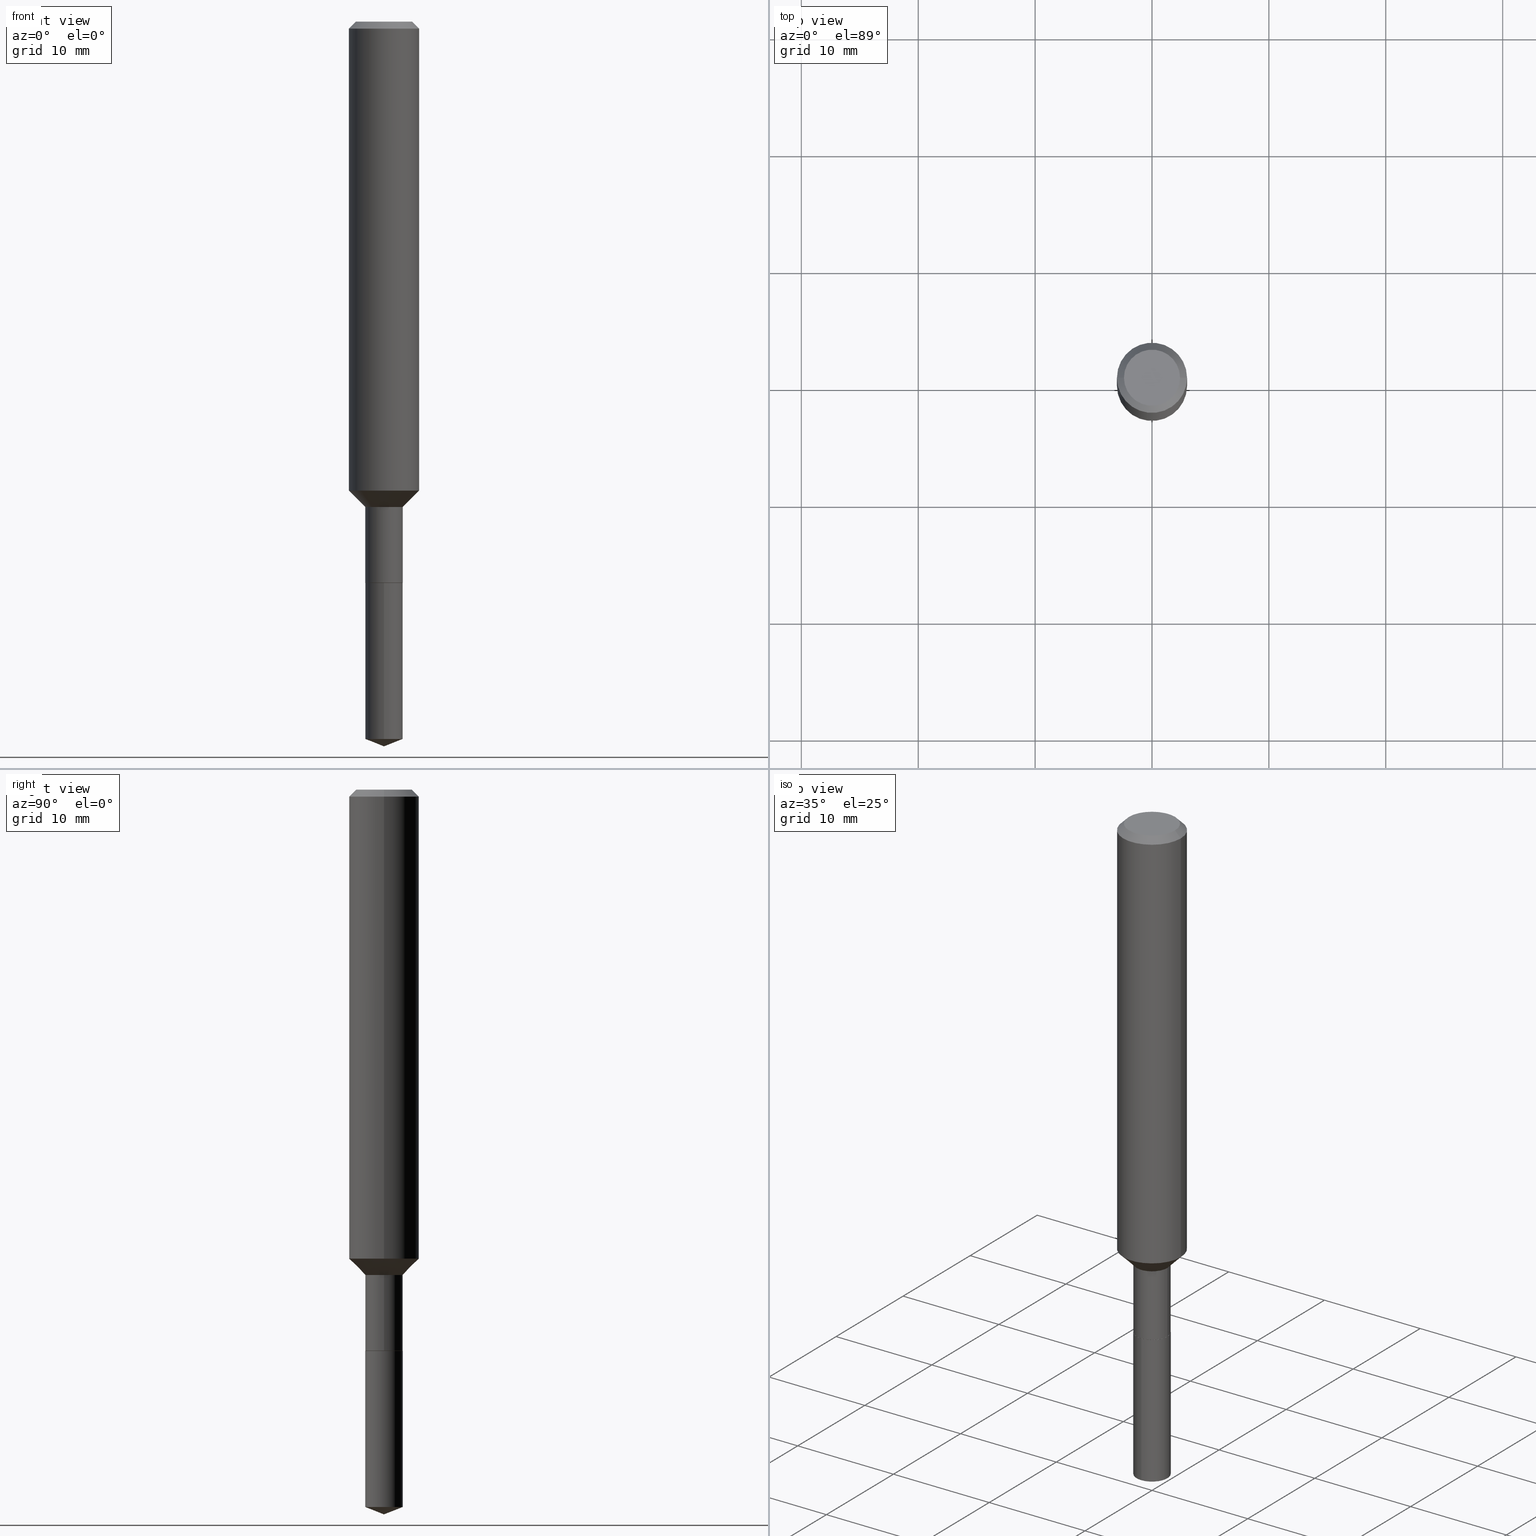
[diagram: canonical four-view strip — front | top / right | iso, engineering-drawing reading convention]
A machine part, canonical four-view strip (front | top / right | iso — engineering-drawing reading convention). The complete STEP part file that produces these views, byte-faithful:
ISO-10303-21;
HEADER;
FILE_DESCRIPTION (( 'STEP AP203' ),
    '1' );
FILE_NAME ('66402.STEP',
    '2024-04-24T22:11:22',
    ( '' ),
    ( '' ),
    'SwSTEP 2.0',
    'SolidWorks 2023',
    '' );
FILE_SCHEMA (( 'CONFIG_CONTROL_DESIGN' ));
ENDSEC;

DATA;
#1 = PRODUCT_DEFINITION_SHAPE ( 'NONE', 'NONE',  #327 ) ;
#2 = DATE_AND_TIME ( #192, #443 ) ;
#3 = PLANE ( 'NONE',  #72 ) ;
#4 = AXIS2_PLACEMENT_3D ( 'NONE', #254, #480, #265 ) ;
#5 = ORIENTED_EDGE ( 'NONE', *, *, #225, .F. ) ;
#6 = ORIENTED_EDGE ( 'NONE', *, *, #255, .T. ) ;
#7 = COORDINATED_UNIVERSAL_TIME_OFFSET ( 5, 0, .BEHIND. ) ;
#8 = DIRECTION ( 'NONE',  ( -2.445468806185136597E-29, 3.491481338843145583E-15, 1.000000000000000000 ) ) ;
#9 = CLOSED_SHELL ( 'NONE', ( #264, #389, #392, #338, #228 ) ) ;
#10 = AXIS2_PLACEMENT_3D ( 'NONE', #290, #63, #441 ) ;
#11 = CARTESIAN_POINT ( 'NONE',  ( 4.476419235289221862E-16, 0.06299999999999340849, -1.889700000000000379 ) ) ;
#12 = ORIENTED_EDGE ( 'NONE', *, *, #331, .F. ) ;
#13 = EDGE_CURVE ( 'NONE', #209, #277, #267, .T. ) ;
#14 = FACE_OUTER_BOUND ( 'NONE', #350, .T. ) ;
#15 = DIRECTION ( 'NONE',  ( -6.982962677686265922E-15, -1.000000000000000000, 4.336266656609941617E-15 ) ) ;
#16 = EDGE_CURVE ( 'NONE', #150, #40, #137, .T. ) ;
#17 = FACE_OUTER_BOUND ( 'NONE', #345, .T. ) ;
#18 = AXIS2_PLACEMENT_3D ( 'NONE', #46, #8, #271 ) ;
#19 = EDGE_LOOP ( 'NONE', ( #67, #155, #79, #371 ) ) ;
#20 = EDGE_CURVE ( 'NONE', #466, #374, #425, .T. ) ;
#21 =( NAMED_UNIT ( * ) PLANE_ANGLE_UNIT ( ) SI_UNIT ( $, .RADIAN. ) );
#22 =( NAMED_UNIT ( * ) SI_UNIT ( $, .STERADIAN. ) SOLID_ANGLE_UNIT ( ) );
#23 = CARTESIAN_POINT ( 'NONE',  ( 4.716267017698007905E-46, -6.733579360998555036E-32, -1.928573779297252010E-17 ) ) ;
#24 = ORIENTED_EDGE ( 'NONE', *, *, #481, .F. ) ;
#25 = CARTESIAN_POINT ( 'NONE',  ( -0.06250000000000000000, -6.153763076161830662E-15, -1.889700000000000157 ) ) ;
#26 = ADVANCED_FACE ( 'NONE', ( #178 ), #69, .F. ) ;
#27 = CIRCLE ( 'NONE', #18, 0.06250000000000000000 ) ;
#28 = LINE ( 'NONE', #399, #376 ) ;
#29 = ORGANIZATION ( 'UNSPECIFIED', 'UNSPECIFIED', '' ) ;
#30 = DIRECTION ( 'NONE',  ( 1.000000000000000000, -6.982962677686267499E-15, 4.875432709231658792E-29 ) ) ;
#31 = DIRECTION ( 'NONE',  ( -2.445468806185136597E-29, 3.491481338843145583E-15, 1.000000000000000000 ) ) ;
#32 = LINE ( 'NONE', #172, #233 ) ;
#33 = PERSON_AND_ORGANIZATION_ROLE ( 'design_supplier' ) ;
#34 = DIRECTION ( 'NONE',  ( -2.445468806185136597E-29, 3.491481338843145583E-15, 1.000000000000000000 ) ) ;
#35 = AXIS2_PLACEMENT_3D ( 'NONE', #451, #300, #380 ) ;
#36 = VECTOR ( 'NONE', #388, 39.37007874015748143 ) ;
#37 = AXIS2_PLACEMENT_3D ( 'NONE', #282, #432, #171 ) ;
#38 = CARTESIAN_POINT ( 'NONE',  ( 4.621202403048053204E-29, -6.597852286011892490E-15, -1.889700000000000157 ) ) ;
#39 = PERSON_AND_ORGANIZATION ( #431, #29 ) ;
#40 = VERTEX_POINT ( 'NONE', #406 ) ;
#41 = ORIENTED_EDGE ( 'NONE', *, *, #362, .F. ) ;
#42 = LOCAL_TIME ( 18, 11, 22.00000000000000000, #77 ) ;
#43 = PERSON_AND_ORGANIZATION_ROLE ( 'creator' ) ;
#44 = DIRECTION ( 'NONE',  ( -6.982962677686265922E-15, -1.000000000000000000, 4.336266656609941617E-15 ) ) ;
#45 = ORIENTED_EDGE ( 'NONE', *, *, #324, .F. ) ;
#46 = CARTESIAN_POINT ( 'NONE',  ( 4.621202403048053204E-29, -6.597852286011892490E-15, -1.889700000000000157 ) ) ;
#47 = VERTEX_POINT ( 'NONE', #262 ) ;
#48 = FACE_OUTER_BOUND ( 'NONE', #117, .T. ) ;
#49 = AXIS2_PLACEMENT_3D ( 'NONE', #222, #191, #96 ) ;
#50 = CC_DESIGN_PERSON_AND_ORGANIZATION_ASSIGNMENT ( #98, #62, ( #238 ) ) ;
#51 = VECTOR ( 'NONE', #204, 39.37007874015748143 ) ;
#52 = CC_DESIGN_SECURITY_CLASSIFICATION ( #88, ( #462 ) ) ;
#53 = DIRECTION ( 'NONE',  ( -6.982962677686268288E-15, -1.000000000000000000, 3.498627837350033805E-15 ) ) ;
#54 = ORIENTED_EDGE ( 'NONE', *, *, #116, .T. ) ;
#55 = APPLICATION_CONTEXT ( 'configuration controlled 3d designs of mechanical parts and assemblies' ) ;
#56 = LINE ( 'NONE', #463, #36 ) ;
#57 = DIRECTION ( 'NONE',  ( -2.445468806185136597E-29, 3.491481338843145583E-15, 1.000000000000000000 ) ) ;
#58 = ORIENTED_EDGE ( 'NONE', *, *, #203, .F. ) ;
#59 = DIRECTION ( 'NONE',  ( -2.434988852863249163E-29, 3.506489228481988303E-15, 1.000000000000000000 ) ) ;
#60 = DIRECTION ( 'NONE',  ( 1.000000000000000000, -6.982962677686266711E-15, 0.000000000000000000 ) ) ;
#61 = ORIENTED_EDGE ( 'NONE', *, *, #116, .F. ) ;
#62 = PERSON_AND_ORGANIZATION_ROLE ( 'design_owner' ) ;
#63 = DIRECTION ( 'NONE',  ( -2.445468806185136597E-29, 3.491481338843145583E-15, 1.000000000000000000 ) ) ;
#64 = CONICAL_SURFACE ( 'NONE', #334, 99.94676754583912270, 1.195550537616116626 ) ;
#65 = DIRECTION ( 'NONE',  ( -2.438088387897960049E-29, 3.491481338843145188E-15, 1.000000000000000000 ) ) ;
#66 = AXIS2_PLACEMENT_3D ( 'NONE', #263, #479, #106 ) ;
#67 = ORIENTED_EDGE ( 'NONE', *, *, #188, .F. ) ;
#68 = EDGE_CURVE ( 'NONE', #131, #269, #107, .T. ) ;
#69 = PLANE ( 'NONE',  #384 ) ;
#70 = DIRECTION ( 'NONE',  ( 6.611014441532059489E-15, 0.9304175679820261280, 0.3665012267242931943 ) ) ;
#71 = ADVANCED_FACE ( 'NONE', ( #221 ), #140, .T. ) ;
#72 = AXIS2_PLACEMENT_3D ( 'NONE', #38, #455, #417 ) ;
#73 = CC_DESIGN_APPROVAL ( #273, ( #327 ) ) ;
#74 = COORDINATED_UNIVERSAL_TIME_OFFSET ( 5, 0, .BEHIND. ) ;
#75 = VERTEX_POINT ( 'NONE', #226 ) ;
#76 = COORDINATED_UNIVERSAL_TIME_OFFSET ( 5, 0, .BEHIND. ) ;
#77 = COORDINATED_UNIVERSAL_TIME_OFFSET ( 5, 0, .BEHIND. ) ;
#78 = CYLINDRICAL_SURFACE ( 'NONE', #258, 0.06300000000000000044 ) ;
#79 = ORIENTED_EDGE ( 'NONE', *, *, #112, .T. ) ;
#80 = AXIS2_PLACEMENT_3D ( 'NONE', #245, #59, #91 ) ;
#81 = ORIENTED_EDGE ( 'NONE', *, *, #430, .F. ) ;
#82 = EDGE_LOOP ( 'NONE', ( #237, #302 ) ) ;
#83 = DIRECTION ( 'NONE',  ( -1.000000000000000000, 6.982962677686266711E-15, 0.000000000000000000 ) ) ;
#84 = ORIENTED_EDGE ( 'NONE', *, *, #481, .T. ) ;
#85 = DIRECTION ( 'NONE',  ( 1.000000000000000000, -6.982962677686262766E-15, 0.000000000000000000 ) ) ;
#86 = EDGE_LOOP ( 'NONE', ( #337, #5 ) ) ;
#87 = VECTOR ( 'NONE', #99, 39.37007874015748854 ) ;
#88 = SECURITY_CLASSIFICATION ( '', '', #414 ) ;
#89 = CARTESIAN_POINT ( 'NONE',  ( 5.776197320209327532E-31, -8.246878922347559293E-17, -0.02362000000000014088 ) ) ;
#90 = EDGE_CURVE ( 'NONE', #438, #40, #329, .T. ) ;
#91 = DIRECTION ( 'NONE',  ( -6.982962677686265922E-15, -1.000000000000000000, 4.336266656609941617E-15 ) ) ;
#92 = CARTESIAN_POINT ( 'NONE',  ( -8.990233460988559297E-28, 1.295201278780987653E-13, 36.92917874015748225 ) ) ;
#93 = CIRCLE ( 'NONE', #434, 0.09447999999999998066 ) ;
#94 = LOCAL_TIME ( 18, 11, 22.00000000000000000, #74 ) ;
#95 = CARTESIAN_POINT ( 'NONE',  ( 5.776197320209327532E-31, -8.246878922347559293E-17, -0.02362000000000014088 ) ) ;
#96 = DIRECTION ( 'NONE',  ( -6.982962677686265922E-15, -1.000000000000000000, 4.336266656609941617E-15 ) ) ;
#97 = ORIENTED_EDGE ( 'NONE', *, *, #112, .F. ) ;
#98 = PERSON_AND_ORGANIZATION ( #431, #29 ) ;
#99 = DIRECTION ( 'NONE',  ( -6.497071151882111948E-15, -0.9304175679820234635, 0.3665012267242997446 ) ) ;
#100 = CC_DESIGN_PERSON_AND_ORGANIZATION_ASSIGNMENT ( #295, #407, ( #462 ) ) ;
#101 = CARTESIAN_POINT ( 'NONE',  ( 5.983519541380308679E-29, -8.502268739700643296E-15, -2.440900000000000070 ) ) ;
#102 = EDGE_LOOP ( 'NONE', ( #41, #213, #84, #113 ) ) ;
#103 = CARTESIAN_POINT ( 'NONE',  ( 3.862617979369423335E-29, -5.514794774702748288E-15, -1.579499999999999904 ) ) ;
#104 = CARTESIAN_POINT ( 'NONE',  ( 5.943564290953905470E-29, -8.558989557801686786E-15, -2.440900000000000070 ) ) ;
#105 = LOCAL_TIME ( 18, 11, 22.00000000000000000, #7 ) ;
#106 = DIRECTION ( 'NONE',  ( 1.000000000000000000, -6.982962677686266711E-15, 0.000000000000000000 ) ) ;
#107 = LINE ( 'NONE', #475, #87 ) ;
#108 = DATE_TIME_ROLE ( 'creation_date' ) ;
#109 = CALENDAR_DATE ( 2024, 24, 4 ) ;
#110 = AXIS2_PLACEMENT_3D ( 'NONE', #401, #219, #216 ) ;
#111 = CONICAL_SURFACE ( 'NONE', #386, 0.06299999999999997269, 0.7853981633974485010 ) ;
#112 = EDGE_CURVE ( 'NONE', #269, #209, #28, .T. ) ;
#113 = ORIENTED_EDGE ( 'NONE', *, *, #121, .F. ) ;
#114 = PERSON_AND_ORGANIZATION ( #431, #29 ) ;
#115 = EDGE_LOOP ( 'NONE', ( #235, #311, #168, #24 ) ) ;
#116 = EDGE_CURVE ( 'NONE', #131, #423, #404, .T. ) ;
#117 = EDGE_LOOP ( 'NONE', ( #45, #244, #379, #347 ) ) ;
#118 = DATE_TIME_ROLE ( 'classification_date' ) ;
#119 = DIRECTION ( 'NONE',  ( -2.434988852863249163E-29, 3.506489228481988303E-15, 1.000000000000000000 ) ) ;
#120 = VECTOR ( 'NONE', #325, 39.37007874015748143 ) ;
#121 = EDGE_CURVE ( 'NONE', #374, #466, #442, .T. ) ;
#122 = DIRECTION ( 'NONE',  ( -2.434988852863249163E-29, 3.506489228481988303E-15, 1.000000000000000000 ) ) ;
#123 = ORIENTED_EDGE ( 'NONE', *, *, #179, .T. ) ;
#124 = DIRECTION ( 'NONE',  ( 0.7071067811865459074, -7.319954787623249734E-15, -0.7071067811865491270 ) ) ;
#125 = ORIENTED_EDGE ( 'NONE', *, *, #309, .T. ) ;
#126 = FACE_OUTER_BOUND ( 'NONE', #217, .T. ) ;
#127 = ORIENTED_EDGE ( 'NONE', *, *, #444, .T. ) ;
#128 = EDGE_CURVE ( 'NONE', #134, #75, #306, .T. ) ;
#129 = CIRCLE ( 'NONE', #307, 0.06299999999999998657 ) ;
#130 = DIRECTION ( 'NONE',  ( 2.438088387897960049E-29, -3.491481338843145188E-15, -1.000000000000000000 ) ) ;
#131 = VERTEX_POINT ( 'NONE', #104 ) ;
#132 = CC_DESIGN_DATE_AND_TIME_ASSIGNMENT ( #2, #118, ( #88 ) ) ;
#133 = CYLINDRICAL_SURFACE ( 'NONE', #210, 0.06299999999999998657 ) ;
#134 = VERTEX_POINT ( 'NONE', #287 ) ;
#135 = AXIS2_PLACEMENT_3D ( 'NONE', #410, #230, #378 ) ;
#136 = CARTESIAN_POINT ( 'NONE',  ( 0.06250000000000000000, -7.034287453367284159E-15, -1.889700000000000157 ) ) ;
#137 = LINE ( 'NONE', #326, #318 ) ;
#138 = DIRECTION ( 'NONE',  ( -2.445468806185136597E-29, 3.491481338843145583E-15, 1.000000000000000000 ) ) ;
#139 = CARTESIAN_POINT ( 'NONE',  ( 4.476419235289220876E-16, 0.06299999999999156275, -2.416083640036259084 ) ) ;
#140 = CYLINDRICAL_SURFACE ( 'NONE', #4, 0.1181000000000001077 ) ;
#141 = DIRECTION ( 'NONE',  ( -2.445468806185136877E-29, 3.491481338843145188E-15, 1.000000000000000000 ) ) ;
#142 = AXIS2_PLACEMENT_3D ( 'NONE', #161, #130, #312 ) ;
#143 = DIRECTION ( 'NONE',  ( -2.445468806185136877E-29, 3.491481338843145188E-15, 1.000000000000000000 ) ) ;
#144 = AXIS2_PLACEMENT_3D ( 'NONE', #224, #31, #174 ) ;
#145 = MANIFOLD_SOLID_BREP ( 'Body-Move/Copy2[2]', #474 ) ;
#146 = APPROVAL_ROLE ( '' ) ;
#147 = DIRECTION ( 'NONE',  ( 1.000000000000000000, -6.982962677686262766E-15, 0.000000000000000000 ) ) ;
#148 = UNCERTAINTY_MEASURE_WITH_UNIT (LENGTH_MEASURE( 1.000000000000000082E-05 ), #260, 'distance_accuracy_value', 'NONE');
#149 = PERSON_AND_ORGANIZATION_ROLE ( 'classification_officer' ) ;
#150 = VERTEX_POINT ( 'NONE', #355 ) ;
#151 = DATE_AND_TIME ( #333, #42 ) ;
#152 = ADVANCED_BREP_SHAPE_REPRESENTATION ( '66402', ( #472, #145, #37 ), #187 ) ;
#153 = VECTOR ( 'NONE', #143, 39.37007874015748143 ) ;
#154 = CONICAL_SURFACE ( 'NONE', #419, 0.1180999999999999966, 0.7853981633974460586 ) ;
#155 = ORIENTED_EDGE ( 'NONE', *, *, #331, .T. ) ;
#156 = APPROVAL_DATE_TIME ( #299, #273 ) ;
#157 = EDGE_LOOP ( 'NONE', ( #6, #418, #58, #246 ) ) ;
#158 = EDGE_CURVE ( 'NONE', #75, #134, #129, .T. ) ;
#159 = ORIENTED_EDGE ( 'NONE', *, *, #489, .T. ) ;
#160 = APPROVAL ( #363, 'UNSPECIFIED' ) ;
#161 = CARTESIAN_POINT ( 'NONE',  ( 2.358133508849003952E-46, -3.366789680499277518E-32, -9.642868896486260050E-18 ) ) ;
#162 = ORIENTED_EDGE ( 'NONE', *, *, #315, .F. ) ;
#163 = CYLINDRICAL_SURFACE ( 'NONE', #356, 0.06300000000000000044 ) ;
#164 = FACE_OUTER_BOUND ( 'NONE', #232, .T. ) ;
#165 = EDGE_CURVE ( 'NONE', #294, #47, #32, .T. ) ;
#166 = DIRECTION ( 'NONE',  ( -2.445468806185136597E-29, 3.491481338843145583E-15, 1.000000000000000000 ) ) ;
#167 = FACE_OUTER_BOUND ( 'NONE', #205, .T. ) ;
#168 = ORIENTED_EDGE ( 'NONE', *, *, #20, .F. ) ;
#169 = EDGE_CURVE ( 'NONE', #381, #460, #461, .T. ) ;
#170 = FACE_OUTER_BOUND ( 'NONE', #342, .T. ) ;
#171 = DIRECTION ( 'NONE',  ( 1.000000000000000000, 0.000000000000000000, 0.000000000000000000 ) ) ;
#172 = CARTESIAN_POINT ( 'NONE',  ( 0.1181000000000001077, -8.246878922347488542E-16, 5.758764772215005345E-30 ) ) ;
#173 = CONICAL_SURFACE ( 'NONE', #291, 0.06250000000000000000, 0.7853981633975420928 ) ;
#174 = DIRECTION ( 'NONE',  ( 1.000000000000000000, -6.982962677686266711E-15, 4.876176775795935793E-29 ) ) ;
#175 = AXIS2_PLACEMENT_3D ( 'NONE', #92, #122, #53 ) ;
#176 = DIRECTION ( 'NONE',  ( 1.000000000000000000, -6.982962677686262766E-15, 0.000000000000000000 ) ) ;
#177 = CYLINDRICAL_SURFACE ( 'NONE', #144, 0.1181000000000001077 ) ;
#178 = FACE_OUTER_BOUND ( 'NONE', #86, .T. ) ;
#179 = EDGE_CURVE ( 'NONE', #150, #459, #314, .T. ) ;
#180 = CARTESIAN_POINT ( 'NONE',  ( 5.902940698865924869E-29, -8.443610849848174055E-15, -2.416083640036259084 ) ) ;
#181 = CARTESIAN_POINT ( 'NONE',  ( 4.621202403048053204E-29, -6.597852286011892490E-15, -1.889700000000000157 ) ) ;
#182 = APPROVAL ( #229, 'UNSPECIFIED' ) ;
#183 = DESIGN_CONTEXT ( 'detailed design', #456, 'design' ) ;
#184 = APPLICATION_PROTOCOL_DEFINITION ( 'international standard', 'config_control_design', 1994, #456 ) ;
#185 = VECTOR ( 'NONE', #70, 39.37007874015748143 ) ;
#186 = DIRECTION ( 'NONE',  ( -2.434988852863248882E-29, 3.506489228481988303E-15, 1.000000000000000000 ) ) ;
#187 =( GEOMETRIC_REPRESENTATION_CONTEXT ( 3 ) GLOBAL_UNCERTAINTY_ASSIGNED_CONTEXT ( ( #148 ) ) GLOBAL_UNIT_ASSIGNED_CONTEXT ( ( #260, #21, #22 ) ) REPRESENTATION_CONTEXT ( 'NONE', 'WORKASPACE' ) );
#188 = EDGE_CURVE ( 'NONE', #423, #277, #227, .T. ) ;
#189 = PERSON_AND_ORGANIZATION ( #431, #29 ) ;
#190 = CYLINDRICAL_SURFACE ( 'NONE', #35, 0.06299999999999998657 ) ;
#191 = DIRECTION ( 'NONE',  ( -2.434988852863249163E-29, 3.506489228481988303E-15, 1.000000000000000000 ) ) ;
#192 = CALENDAR_DATE ( 2024, 24, 4 ) ;
#193 = ADVANCED_FACE ( 'NONE', ( #488 ), #240, .T. ) ;
#194 = ORIENTED_EDGE ( 'NONE', *, *, #20, .T. ) ;
#195 = VECTOR ( 'NONE', #124, 39.37007874015748143 ) ;
#196 = ORIENTED_EDGE ( 'NONE', *, *, #324, .T. ) ;
#197 = DATE_AND_TIME ( #454, #368 ) ;
#198 = ORIENTED_EDGE ( 'NONE', *, *, #188, .T. ) ;
#199 = CC_DESIGN_DATE_AND_TIME_ASSIGNMENT ( #372, #108, ( #327 ) ) ;
#200 = CARTESIAN_POINT ( 'NONE',  ( 5.902940698865924869E-29, -8.443610849848174055E-15, -2.416083640036259084 ) ) ;
#201 = AXIS2_PLACEMENT_3D ( 'NONE', #200, #385, #346 ) ;
#202 = ORIENTED_EDGE ( 'NONE', *, *, #68, .T. ) ;
#203 = EDGE_CURVE ( 'NONE', #47, #40, #484, .T. ) ;
#204 = DIRECTION ( 'NONE',  ( -2.445468806185136877E-29, 3.491481338843145188E-15, 1.000000000000000000 ) ) ;
#205 = EDGE_LOOP ( 'NONE', ( #61, #202, #12 ) ) ;
#206 = PRODUCT_RELATED_PRODUCT_CATEGORY ( 'detail', '', ( #238 ) ) ;
#207 = CARTESIAN_POINT ( 'NONE',  ( 4.716267017698007905E-46, -6.733579360998555036E-32, -1.928573779297252010E-17 ) ) ;
#208 = LINE ( 'NONE', #310, #195 ) ;
#209 = VERTEX_POINT ( 'NONE', #284 ) ;
#210 = AXIS2_PLACEMENT_3D ( 'NONE', #343, #275, #243 ) ;
#211 = CIRCLE ( 'NONE', #241, 0.06300000000000001432 ) ;
#212 = CARTESIAN_POINT ( 'NONE',  ( 0.1181000000000001632, -6.339482666937496551E-15, -1.579499999999999904 ) ) ;
#213 = ORIENTED_EDGE ( 'NONE', *, *, #158, .T. ) ;
#214 = ADVANCED_FACE ( 'NONE', ( #268 ), #190, .T. ) ;
#215 = LINE ( 'NONE', #253, #249 ) ;
#216 = DIRECTION ( 'NONE',  ( 1.000000000000000000, -6.982962677686258822E-15, 0.000000000000000000 ) ) ;
#217 = EDGE_LOOP ( 'NONE', ( #452, #252, #159, #382 ) ) ;
#218 = DIRECTION ( 'NONE',  ( -0.7071067811866138531, 7.493145998870593974E-15, 0.7071067811864811814 ) ) ;
#219 = DIRECTION ( 'NONE',  ( -2.445468806185136597E-29, 3.491481338843145583E-15, 1.000000000000000000 ) ) ;
#220 = CONICAL_SURFACE ( 'NONE', #296, 0.1180999999999999966, 0.7853981633974460586 ) ;
#221 = FACE_OUTER_BOUND ( 'NONE', #157, .T. ) ;
#222 = CARTESIAN_POINT ( 'NONE',  ( 4.621202403048053204E-29, -6.597852286011892490E-15, -1.889700000000000157 ) ) ;
#223 = ORIENTED_EDGE ( 'NONE', *, *, #416, .T. ) ;
#224 = CARTESIAN_POINT ( 'NONE',  ( 0.000000000000000000, 0.000000000000000000, 0.000000000000000000 ) ) ;
#225 = EDGE_CURVE ( 'NONE', #460, #381, #27, .T. ) ;
#226 = CARTESIAN_POINT ( 'NONE',  ( -0.06300000000000000044, -5.703999047378875308E-15, -1.889200000000000212 ) ) ;
#227 = LINE ( 'NONE', #317, #408 ) ;
#228 = ADVANCED_FACE ( 'NONE', ( #369 ), #3, .F. ) ;
#229 = APPROVAL_STATUS ( 'not_yet_approved' ) ;
#230 = DIRECTION ( 'NONE',  ( -2.445468806185136597E-29, 3.491481338843145583E-15, 1.000000000000000000 ) ) ;
#231 = ORIENTED_EDGE ( 'NONE', *, *, #309, .F. ) ;
#232 = EDGE_LOOP ( 'NONE', ( #298, #457, #411, #81 ) ) ;
#233 = VECTOR ( 'NONE', #439, 39.37007874015748143 ) ;
#234 = ORIENTED_EDGE ( 'NONE', *, *, #489, .F. ) ;
#235 = ORIENTED_EDGE ( 'NONE', *, *, #128, .T. ) ;
#236 = FACE_OUTER_BOUND ( 'NONE', #115, .T. ) ;
#237 = ORIENTED_EDGE ( 'NONE', *, *, #13, .T. ) ;
#238 = PRODUCT ( '66402', '66402', '', ( #395 ) ) ;
#239 = DIRECTION ( 'NONE',  ( 1.000000000000000000, -6.982962677686267499E-15, 4.875432709231658792E-29 ) ) ;
#240 = CONICAL_SURFACE ( 'NONE', #393, 0.06250000000000000000, 0.7853981633975420928 ) ;
#241 = AXIS2_PLACEMENT_3D ( 'NONE', #180, #320, #405 ) ;
#242 = CC_DESIGN_PERSON_AND_ORGANIZATION_ASSIGNMENT ( #270, #149, ( #88 ) ) ;
#243 = DIRECTION ( 'NONE',  ( 1.000000000000000000, -6.982962677686265922E-15, 4.876176775795935793E-29 ) ) ;
#244 = ORIENTED_EDGE ( 'NONE', *, *, #315, .T. ) ;
#245 = CARTESIAN_POINT ( 'NONE',  ( 4.621202403048053204E-29, -6.597852286011892490E-15, -1.889700000000000157 ) ) ;
#246 = ORIENTED_EDGE ( 'NONE', *, *, #165, .F. ) ;
#247 = CARTESIAN_POINT ( 'NONE',  ( 4.621202403048053204E-29, -6.597852286011892490E-15, -1.889700000000000157 ) ) ;
#248 = CC_DESIGN_PERSON_AND_ORGANIZATION_ASSIGNMENT ( #189, #43, ( #327 ) ) ;
#249 = VECTOR ( 'NONE', #141, 39.37007874015748143 ) ;
#250 = DIRECTION ( 'NONE',  ( -2.445468806185136597E-29, 3.491481338843145583E-15, 1.000000000000000000 ) ) ;
#251 = DIRECTION ( 'NONE',  ( -2.445468806185136597E-29, 3.491481338843145583E-15, 1.000000000000000000 ) ) ;
#252 = ORIENTED_EDGE ( 'NONE', *, *, #225, .T. ) ;
#253 = CARTESIAN_POINT ( 'NONE',  ( 0.06299999999999998657, -4.399266486942346765E-16, 3.071991368751438723E-30 ) ) ;
#254 = CARTESIAN_POINT ( 'NONE',  ( 0.000000000000000000, 0.000000000000000000, 0.000000000000000000 ) ) ;
#255 = EDGE_CURVE ( 'NONE', #294, #438, #470, .T. ) ;
#256 = DIRECTION ( 'NONE',  ( -2.445468806185136597E-29, 3.491481338843145583E-15, 1.000000000000000000 ) ) ;
#257 = ORIENTED_EDGE ( 'NONE', *, *, #169, .T. ) ;
#258 = AXIS2_PLACEMENT_3D ( 'NONE', #303, #119, #44 ) ;
#259 = ORIENTED_EDGE ( 'NONE', *, *, #416, .F. ) ;
#260 =( CONVERSION_BASED_UNIT ( 'INCH', #351 ) LENGTH_UNIT ( ) NAMED_UNIT ( #278 ) );
#261 = AXIS2_PLACEMENT_3D ( 'NONE', #103, #138, #286 ) ;
#262 = CARTESIAN_POINT ( 'NONE',  ( 0.1180999999999999966, -9.071566814582237199E-16, -0.02362000000000014088 ) ) ;
#263 = CARTESIAN_POINT ( 'NONE',  ( 5.776197320209327532E-31, -8.246878922347559293E-17, -0.02362000000000014088 ) ) ;
#264 = ADVANCED_FACE ( 'NONE', ( #373 ), #78, .T. ) ;
#265 = DIRECTION ( 'NONE',  ( 1.000000000000000000, -6.982962677686266711E-15, 4.876176775795935793E-29 ) ) ;
#266 = ADVANCED_FACE ( 'NONE', ( #126 ), #173, .T. ) ;
#267 = CIRCLE ( 'NONE', #49, 0.06300000000000000044 ) ;
#268 = FACE_OUTER_BOUND ( 'NONE', #102, .T. ) ;
#269 = VERTEX_POINT ( 'NONE', #467 ) ;
#270 = PERSON_AND_ORGANIZATION ( #431, #29 ) ;
#271 = DIRECTION ( 'NONE',  ( 1.000000000000000000, -6.982962677686262766E-15, 0.000000000000000000 ) ) ;
#272 = APPROVAL_ROLE ( '' ) ;
#273 = APPROVAL ( #446, 'UNSPECIFIED' ) ;
#274 = VECTOR ( 'NONE', #218, 39.37007874015748143 ) ;
#275 = DIRECTION ( 'NONE',  ( -2.445468806185136597E-29, 3.491481338843145583E-15, 1.000000000000000000 ) ) ;
#276 = DIRECTION ( 'NONE',  ( -2.434988852863249163E-29, 3.506489228481988303E-15, 1.000000000000000000 ) ) ;
#277 = VERTEX_POINT ( 'NONE', #11 ) ;
#278 = DIMENSIONAL_EXPONENTS ( 1.000000000000000000, 0.000000000000000000, 0.000000000000000000, 0.000000000000000000, 0.000000000000000000, 0.000000000000000000, 0.000000000000000000 ) ;
#279 = EDGE_CURVE ( 'NONE', #277, #209, #365, .T. ) ;
#280 = CARTESIAN_POINT ( 'NONE',  ( -8.990233460988559297E-28, 1.295201278780987653E-13, 36.92917874015748225 ) ) ;
#281 = CARTESIAN_POINT ( 'NONE',  ( 3.997363310590224498E-29, -5.707175396473005870E-15, -1.634600000000000053 ) ) ;
#282 = CARTESIAN_POINT ( 'NONE',  ( 0.000000000000000000, 0.000000000000000000, 0.000000000000000000 ) ) ;
#283 = AXIS2_PLACEMENT_3D ( 'NONE', #23, #256, #30 ) ;
#284 = CARTESIAN_POINT ( 'NONE',  ( -4.399266486941885775E-16, -0.06300000000000660627, -1.889699999999999713 ) ) ;
#285 = ADVANCED_FACE ( 'NONE', ( #349 ), #426, .F. ) ;
#286 = DIRECTION ( 'NONE',  ( 1.000000000000000000, -6.982962677686269077E-15, 0.000000000000000000 ) ) ;
#287 = CARTESIAN_POINT ( 'NONE',  ( 0.06299999999999998657, -7.036033194036706451E-15, -1.889200000000000212 ) ) ;
#288 = ADVANCED_FACE ( 'NONE', ( #14 ), #154, .T. ) ;
#289 = CARTESIAN_POINT ( 'NONE',  ( -0.06250000000000000000, -6.151113848987719461E-15, -1.889700000000000157 ) ) ;
#290 = CARTESIAN_POINT ( 'NONE',  ( 4.619979668644960403E-29, -6.596106545342470986E-15, -1.889200000000000212 ) ) ;
#291 = AXIS2_PLACEMENT_3D ( 'NONE', #422, #57, #85 ) ;
#292 = APPLICATION_PROTOCOL_DEFINITION ( 'international standard', 'config_control_design', 1994, #55 ) ;
#293 = DIRECTION ( 'NONE',  ( -2.434988852863248882E-29, 3.506489228481988303E-15, 1.000000000000000000 ) ) ;
#294 = VERTEX_POINT ( 'NONE', #212 ) ;
#295 = PERSON_AND_ORGANIZATION ( #431, #29 ) ;
#296 = AXIS2_PLACEMENT_3D ( 'NONE', #391, #390, #83 ) ;
#297 = VECTOR ( 'NONE', #322, 39.37007874015748143 ) ;
#298 = ORIENTED_EDGE ( 'NONE', *, *, #90, .F. ) ;
#299 = DATE_AND_TIME ( #109, #94 ) ;
#300 = DIRECTION ( 'NONE',  ( -2.445468806185136597E-29, 3.491481338843145583E-15, 1.000000000000000000 ) ) ;
#301 = ADVANCED_FACE ( 'NONE', ( #236 ), #133, .T. ) ;
#302 = ORIENTED_EDGE ( 'NONE', *, *, #279, .T. ) ;
#303 = CARTESIAN_POINT ( 'NONE',  ( 4.621202403048053204E-29, -6.597852286011892490E-15, -1.889700000000000157 ) ) ;
#304 = ADVANCED_FACE ( 'NONE', ( #48 ), #220, .T. ) ;
#305 = DIRECTION ( 'NONE',  ( -2.434988852863249163E-29, 3.506489228481988303E-15, 1.000000000000000000 ) ) ;
#306 = CIRCLE ( 'NONE', #10, 0.06299999999999998657 ) ;
#307 = AXIS2_PLACEMENT_3D ( 'NONE', #364, #361, #477 ) ;
#308 = CONICAL_SURFACE ( 'NONE', #175, 99.94676754583912270, 1.195550537616116626 ) ;
#309 = EDGE_CURVE ( 'NONE', #466, #294, #56, .T. ) ;
#310 = CARTESIAN_POINT ( 'NONE',  ( 0.1180999999999999966, -8.926936027602933910E-16, -0.02362000000000014088 ) ) ;
#311 = ORIENTED_EDGE ( 'NONE', *, *, #362, .T. ) ;
#312 = DIRECTION ( 'NONE',  ( -1.000000000000000000, 6.982962677686265922E-15, -4.876176775795935793E-29 ) ) ;
#313 = DIRECTION ( 'NONE',  ( 1.000000000000000000, -6.982962677686258822E-15, 0.000000000000000000 ) ) ;
#314 = CIRCLE ( 'NONE', #283, 0.09447999999999998066 ) ;
#315 = EDGE_CURVE ( 'NONE', #459, #47, #208, .T. ) ;
#316 = DIRECTION ( 'NONE',  ( -1.000000000000000000, 6.982962677686266711E-15, 0.000000000000000000 ) ) ;
#317 = CARTESIAN_POINT ( 'NONE',  ( 4.476419235289092686E-16, 0.06299999999999340849, -1.889700000000000379 ) ) ;
#318 = VECTOR ( 'NONE', #323, 39.37007874015748143 ) ;
#319 = AXIS2_PLACEMENT_3D ( 'NONE', #321, #396, #435 ) ;
#320 = DIRECTION ( 'NONE',  ( -2.434988852863249163E-29, 3.506489228481988303E-15, 1.000000000000000000 ) ) ;
#321 = CARTESIAN_POINT ( 'NONE',  ( 3.997363310590224498E-29, -5.707175396473005870E-15, -1.634600000000000053 ) ) ;
#322 = DIRECTION ( 'NONE',  ( -0.7071067811865476838, 7.493145998870354160E-15, 0.7071067811865473507 ) ) ;
#323 = DIRECTION ( 'NONE',  ( -0.7071067811865459074, 2.468850131082240100E-15, -0.7071067811865491270 ) ) ;
#324 = EDGE_CURVE ( 'NONE', #459, #150, #93, .T. ) ;
#325 = DIRECTION ( 'NONE',  ( 0.7071067811866138531, -2.468850131082952047E-15, 0.7071067811864811814 ) ) ;
#326 = CARTESIAN_POINT ( 'NONE',  ( -0.1180999999999999966, 7.422191030112725094E-16, -0.02362000000000014088 ) ) ;
#327 = PRODUCT_DEFINITION ( 'UNKNOWN', '', #462, #183 ) ;
#328 = CONICAL_SURFACE ( 'NONE', #394, 0.06299999999999997269, 0.7853981633974485010 ) ;
#329 = LINE ( 'NONE', #360, #153 ) ;
#330 = PERSON_AND_ORGANIZATION ( #431, #29 ) ;
#331 = EDGE_CURVE ( 'NONE', #423, #269, #341, .T. ) ;
#332 = ORIENTED_EDGE ( 'NONE', *, *, #255, .F. ) ;
#333 = CALENDAR_DATE ( 2024, 24, 4 ) ;
#334 = AXIS2_PLACEMENT_3D ( 'NONE', #280, #276, #428 ) ;
#335 = APPROVAL_PERSON_ORGANIZATION ( #39, #273, #370 ) ;
#336 = EDGE_LOOP ( 'NONE', ( #127, #198, #427, #97 ) ) ;
#337 = ORIENTED_EDGE ( 'NONE', *, *, #169, .F. ) ;
#338 = ADVANCED_FACE ( 'NONE', ( #471 ), #163, .T. ) ;
#339 = ORIENTED_EDGE ( 'NONE', *, *, #121, .T. ) ;
#340 = CARTESIAN_POINT ( 'NONE',  ( -0.06299999999999997269, -5.703999047378875308E-15, -1.634600000000000053 ) ) ;
#341 = CIRCLE ( 'NONE', #201, 0.06300000000000001432 ) ;
#342 = EDGE_LOOP ( 'NONE', ( #259, #339, #125, #478 ) ) ;
#343 = CARTESIAN_POINT ( 'NONE',  ( 0.000000000000000000, 0.000000000000000000, 0.000000000000000000 ) ) ;
#344 = DIRECTION ( 'NONE',  ( -2.445468806185136597E-29, 3.491481338843145583E-15, 1.000000000000000000 ) ) ;
#345 = EDGE_LOOP ( 'NONE', ( #194, #223, #332, #231 ) ) ;
#346 = DIRECTION ( 'NONE',  ( -6.982962677686265133E-15, -1.000000000000000000, 4.336266656609940828E-15 ) ) ;
#347 = ORIENTED_EDGE ( 'NONE', *, *, #16, .F. ) ;
#348 = CC_DESIGN_APPROVAL ( #160, ( #462 ) ) ;
#349 = FACE_OUTER_BOUND ( 'NONE', #353, .T. ) ;
#350 = EDGE_LOOP ( 'NONE', ( #162, #387, #464, #490 ) ) ;
#351 = LENGTH_MEASURE_WITH_UNIT ( LENGTH_MEASURE( 0.02539999999999999897 ), #398 );
#352 = DIRECTION ( 'NONE',  ( -2.445468806185136597E-29, 3.491481338843145583E-15, 1.000000000000000000 ) ) ;
#353 = EDGE_LOOP ( 'NONE', ( #123, #196 ) ) ;
#354 = LINE ( 'NONE', #440, #297 ) ;
#355 = CARTESIAN_POINT ( 'NONE',  ( -0.09447999999999998066, 7.009847083995354710E-16, -1.928573779297727792E-17 ) ) ;
#356 = AXIS2_PLACEMENT_3D ( 'NONE', #247, #305, #15 ) ;
#357 = APPROVAL_PERSON_ORGANIZATION ( #114, #160, #272 ) ;
#358 = CARTESIAN_POINT ( 'NONE',  ( 3.997363310590224498E-29, -5.707175396473005870E-15, -1.634600000000000053 ) ) ;
#359 = ADVANCED_FACE ( 'NONE', ( #17 ), #111, .T. ) ;
#360 = CARTESIAN_POINT ( 'NONE',  ( -0.1181000000000001077, 8.391509709326790846E-16, -5.809262341591049389E-30 ) ) ;
#361 = DIRECTION ( 'NONE',  ( -2.445468806185136597E-29, 3.491481338843145583E-15, 1.000000000000000000 ) ) ;
#362 = EDGE_CURVE ( 'NONE', #75, #374, #429, .T. ) ;
#363 = APPROVAL_STATUS ( 'not_yet_approved' ) ;
#364 = CARTESIAN_POINT ( 'NONE',  ( 4.619979668644960403E-29, -6.596106545342470986E-15, -1.889200000000000212 ) ) ;
#365 = CIRCLE ( 'NONE', #80, 0.06300000000000000044 ) ;
#366 = APPROVAL_PERSON_ORGANIZATION ( #367, #182, #146 ) ;
#367 = PERSON_AND_ORGANIZATION ( #431, #29 ) ;
#368 = LOCAL_TIME ( 18, 11, 22.00000000000000000, #76 ) ;
#369 = FACE_OUTER_BOUND ( 'NONE', #82, .T. ) ;
#370 = APPROVAL_ROLE ( '' ) ;
#371 = ORIENTED_EDGE ( 'NONE', *, *, #279, .F. ) ;
#372 = DATE_AND_TIME ( #458, #105 ) ;
#373 = FACE_OUTER_BOUND ( 'NONE', #336, .T. ) ;
#374 = VERTEX_POINT ( 'NONE', #340 ) ;
#375 = COORDINATED_UNIVERSAL_TIME_OFFSET ( 5, 0, .BEHIND. ) ;
#376 = VECTOR ( 'NONE', #186, 39.37007874015748143 ) ;
#377 = CC_DESIGN_APPROVAL ( #182, ( #88 ) ) ;
#378 = DIRECTION ( 'NONE',  ( 1.000000000000000000, -6.982962677686269077E-15, 0.000000000000000000 ) ) ;
#379 = ORIENTED_EDGE ( 'NONE', *, *, #203, .T. ) ;
#380 = DIRECTION ( 'NONE',  ( 1.000000000000000000, -6.982962677686265922E-15, 4.876176775795935793E-29 ) ) ;
#381 = VERTEX_POINT ( 'NONE', #465 ) ;
#382 = ORIENTED_EDGE ( 'NONE', *, *, #158, .F. ) ;
#383 = DIRECTION ( 'NONE',  ( 2.445468806185136597E-29, -3.491481338843145583E-15, -1.000000000000000000 ) ) ;
#384 = AXIS2_PLACEMENT_3D ( 'NONE', #483, #65, #436 ) ;
#385 = DIRECTION ( 'NONE',  ( -2.434988852863249163E-29, 3.506489228481988303E-15, 1.000000000000000000 ) ) ;
#386 = AXIS2_PLACEMENT_3D ( 'NONE', #281, #166, #313 ) ;
#387 = ORIENTED_EDGE ( 'NONE', *, *, #179, .F. ) ;
#388 = DIRECTION ( 'NONE',  ( 0.7071067811865476838, -2.468850131082258638E-15, 0.7071067811865473507 ) ) ;
#389 = ADVANCED_FACE ( 'NONE', ( #420 ), #64, .T. ) ;
#390 = DIRECTION ( 'NONE',  ( 2.445468806185136597E-29, -3.491481338843145583E-15, -1.000000000000000000 ) ) ;
#391 = CARTESIAN_POINT ( 'NONE',  ( 5.776197320209327532E-31, -8.246878922347559293E-17, -0.02362000000000014088 ) ) ;
#392 = ADVANCED_FACE ( 'NONE', ( #167 ), #308, .T. ) ;
#393 = AXIS2_PLACEMENT_3D ( 'NONE', #445, #34, #147 ) ;
#394 = AXIS2_PLACEMENT_3D ( 'NONE', #358, #250, #476 ) ;
#395 = MECHANICAL_CONTEXT ( 'NONE', #55, 'mechanical' ) ;
#396 = DIRECTION ( 'NONE',  ( -2.445468806185136597E-29, 3.491481338843145583E-15, 1.000000000000000000 ) ) ;
#397 = ORIENTED_EDGE ( 'NONE', *, *, #444, .F. ) ;
#398 =( LENGTH_UNIT ( ) NAMED_UNIT ( * ) SI_UNIT ( $, .METRE. ) );
#399 = CARTESIAN_POINT ( 'NONE',  ( -4.399266486941885775E-16, -0.06300000000000660627, -1.889699999999999713 ) ) ;
#400 = CARTESIAN_POINT ( 'NONE',  ( 0.09447999999999998066, -7.704367267948738690E-16, -1.928573779296752193E-17 ) ) ;
#401 = CARTESIAN_POINT ( 'NONE',  ( 3.997363310590224498E-29, -5.707175396473005870E-15, -1.634600000000000053 ) ) ;
#402 = AXIS2_PLACEMENT_3D ( 'NONE', #95, #251, #60 ) ;
#403 = CARTESIAN_POINT ( 'NONE',  ( 0.06299999999999997269, -6.147102045167239758E-15, -1.634600000000000053 ) ) ;
#404 = LINE ( 'NONE', #101, #185 ) ;
#405 = DIRECTION ( 'NONE',  ( -6.982962677686265133E-15, -1.000000000000000000, 4.336266656609940828E-15 ) ) ;
#406 = CARTESIAN_POINT ( 'NONE',  ( -0.1180999999999999966, -1.959480811030432098E-15, -0.02362000000000014088 ) ) ;
#407 = PERSON_AND_ORGANIZATION_ROLE ( 'creator' ) ;
#408 = VECTOR ( 'NONE', #293, 39.37007874015748143 ) ;
#409 = CIRCLE ( 'NONE', #66, 0.1180999999999999966 ) ;
#410 = CARTESIAN_POINT ( 'NONE',  ( 3.862617979369423335E-29, -5.514794774702748288E-15, -1.579499999999999904 ) ) ;
#411 = ORIENTED_EDGE ( 'NONE', *, *, #165, .T. ) ;
#412 = ADVANCED_FACE ( 'NONE', ( #164 ), #177, .T. ) ;
#413 = EDGE_LOOP ( 'NONE', ( #257, #448, #468, #234 ) ) ;
#414 = SECURITY_CLASSIFICATION_LEVEL ( 'unclassified' ) ;
#415 = ORIENTED_EDGE ( 'NONE', *, *, #68, .F. ) ;
#416 = EDGE_CURVE ( 'NONE', #374, #438, #354, .T. ) ;
#417 = DIRECTION ( 'NONE',  ( 6.982962677686265922E-15, 1.000000000000000000, -3.506489228481988303E-15 ) ) ;
#418 = ORIENTED_EDGE ( 'NONE', *, *, #90, .T. ) ;
#419 = AXIS2_PLACEMENT_3D ( 'NONE', #89, #383, #316 ) ;
#420 = FACE_OUTER_BOUND ( 'NONE', #421, .T. ) ;
#421 = EDGE_LOOP ( 'NONE', ( #415, #54, #397 ) ) ;
#422 = CARTESIAN_POINT ( 'NONE',  ( 4.621202403048053204E-29, -6.597852286011892490E-15, -1.889700000000000157 ) ) ;
#423 = VERTEX_POINT ( 'NONE', #139 ) ;
#424 = EDGE_CURVE ( 'NONE', #460, #75, #473, .T. ) ;
#425 = CIRCLE ( 'NONE', #110, 0.06299999999999997269 ) ;
#426 = PLANE ( 'NONE',  #142 ) ;
#427 = ORIENTED_EDGE ( 'NONE', *, *, #13, .F. ) ;
#428 = DIRECTION ( 'NONE',  ( -6.982962677686268288E-15, -1.000000000000000000, 3.498627837350033805E-15 ) ) ;
#429 = LINE ( 'NONE', #469, #51 ) ;
#430 = EDGE_CURVE ( 'NONE', #40, #47, #409, .T. ) ;
#431 = PERSON ( 'UNSPECIFIED', 'UNSPECIFIED', 'UNSPECIFIED', ('UNSPECIFIED'), ('UNSPECIFIED'), ('UNSPECIFIED') ) ;
#432 = DIRECTION ( 'NONE',  ( 0.000000000000000000, 0.000000000000000000, 1.000000000000000000 ) ) ;
#433 = CC_DESIGN_PERSON_AND_ORGANIZATION_ASSIGNMENT ( #330, #33, ( #462 ) ) ;
#434 = AXIS2_PLACEMENT_3D ( 'NONE', #207, #344, #239 ) ;
#435 = DIRECTION ( 'NONE',  ( 1.000000000000000000, -6.982962677686258822E-15, 0.000000000000000000 ) ) ;
#436 = DIRECTION ( 'NONE',  ( 1.000000000000000000, -6.982962677686265922E-15, 4.876176775795935793E-29 ) ) ;
#437 = LINE ( 'NONE', #136, #120 ) ;
#438 = VERTEX_POINT ( 'NONE', #482 ) ;
#439 = DIRECTION ( 'NONE',  ( -2.445468806185136877E-29, 3.491481338843145188E-15, 1.000000000000000000 ) ) ;
#440 = CARTESIAN_POINT ( 'NONE',  ( -0.06299999999999997269, -5.259533472944143144E-15, -1.634600000000000053 ) ) ;
#441 = DIRECTION ( 'NONE',  ( 1.000000000000000000, -6.982962677686272233E-15, 0.000000000000000000 ) ) ;
#442 = CIRCLE ( 'NONE', #319, 0.06299999999999997269 ) ;
#443 = LOCAL_TIME ( 18, 11, 22.00000000000000000, #375 ) ;
#444 = EDGE_CURVE ( 'NONE', #269, #423, #211, .T. ) ;
#445 = CARTESIAN_POINT ( 'NONE',  ( 4.621202403048053204E-29, -6.597852286011892490E-15, -1.889700000000000157 ) ) ;
#446 = APPROVAL_STATUS ( 'not_yet_approved' ) ;
#447 = SHAPE_DEFINITION_REPRESENTATION ( #1, #152 ) ;
#448 = ORIENTED_EDGE ( 'NONE', *, *, #424, .T. ) ;
#449 = AXIS2_PLACEMENT_3D ( 'NONE', #181, #352, #176 ) ;
#450 = APPROVAL_DATE_TIME ( #151, #182 ) ;
#451 = CARTESIAN_POINT ( 'NONE',  ( 0.000000000000000000, 0.000000000000000000, 0.000000000000000000 ) ) ;
#452 = ORIENTED_EDGE ( 'NONE', *, *, #424, .F. ) ;
#453 = ADVANCED_FACE ( 'NONE', ( #170 ), #328, .T. ) ;
#454 = CALENDAR_DATE ( 2024, 24, 4 ) ;
#455 = DIRECTION ( 'NONE',  ( 2.434988852863248882E-29, -3.506489228481988303E-15, -1.000000000000000000 ) ) ;
#456 = APPLICATION_CONTEXT ( 'configuration controlled 3d designs of mechanical parts and assemblies' ) ;
#457 = ORIENTED_EDGE ( 'NONE', *, *, #486, .T. ) ;
#458 = CALENDAR_DATE ( 2024, 24, 4 ) ;
#459 = VERTEX_POINT ( 'NONE', #400 ) ;
#460 = VERTEX_POINT ( 'NONE', #289 ) ;
#461 = CIRCLE ( 'NONE', #449, 0.06250000000000000000 ) ;
#462 = PRODUCT_DEFINITION_FORMATION_WITH_SPECIFIED_SOURCE ( 'ANY', '', #238, .NOT_KNOWN. ) ;
#463 = CARTESIAN_POINT ( 'NONE',  ( 0.06299999999999997269, -6.147102045167239758E-15, -1.634600000000000053 ) ) ;
#464 = ORIENTED_EDGE ( 'NONE', *, *, #16, .T. ) ;
#465 = CARTESIAN_POINT ( 'NONE',  ( 0.06250000000000000000, -7.034287453367284159E-15, -1.889700000000000157 ) ) ;
#466 = VERTEX_POINT ( 'NONE', #403 ) ;
#467 = CARTESIAN_POINT ( 'NONE',  ( -4.399266486941757092E-16, -0.06300000000000843814, -2.416083640036258640 ) ) ;
#468 = ORIENTED_EDGE ( 'NONE', *, *, #128, .F. ) ;
#469 = CARTESIAN_POINT ( 'NONE',  ( -0.06299999999999998657, 4.476419235288630216E-16, -3.098929106860589953E-30 ) ) ;
#470 = CIRCLE ( 'NONE', #135, 0.1181000000000001909 ) ;
#471 = FACE_OUTER_BOUND ( 'NONE', #19, .T. ) ;
#472 = MANIFOLD_SOLID_BREP ( 'Body-Move/Copy2[1]', #9 ) ;
#473 = LINE ( 'NONE', #25, #274 ) ;
#474 = CLOSED_SHELL ( 'NONE', ( #193, #304, #71, #359, #301, #214, #453, #412, #288, #285, #26, #266 ) ) ;
#475 = CARTESIAN_POINT ( 'NONE',  ( 5.943564290953905470E-29, -8.558989557801686786E-15, -2.440900000000000070 ) ) ;
#476 = DIRECTION ( 'NONE',  ( 1.000000000000000000, -6.982962677686258822E-15, 0.000000000000000000 ) ) ;
#477 = DIRECTION ( 'NONE',  ( 1.000000000000000000, -6.982962677686272233E-15, 0.000000000000000000 ) ) ;
#478 = ORIENTED_EDGE ( 'NONE', *, *, #486, .F. ) ;
#479 = DIRECTION ( 'NONE',  ( -2.445468806185136597E-29, 3.491481338843145583E-15, 1.000000000000000000 ) ) ;
#480 = DIRECTION ( 'NONE',  ( -2.445468806185136597E-29, 3.491481338843145583E-15, 1.000000000000000000 ) ) ;
#481 = EDGE_CURVE ( 'NONE', #134, #466, #215, .T. ) ;
#482 = CARTESIAN_POINT ( 'NONE',  ( -0.1181000000000001632, -4.675643803770067725E-15, -1.579499999999999904 ) ) ;
#483 = CARTESIAN_POINT ( 'NONE',  ( 4.621202403048053204E-29, -6.597852286011892490E-15, -1.889700000000000157 ) ) ;
#484 = CIRCLE ( 'NONE', #402, 0.1180999999999999966 ) ;
#485 = CIRCLE ( 'NONE', #261, 0.1181000000000001909 ) ;
#486 = EDGE_CURVE ( 'NONE', #438, #294, #485, .T. ) ;
#487 = APPROVAL_DATE_TIME ( #197, #160 ) ;
#488 = FACE_OUTER_BOUND ( 'NONE', #413, .T. ) ;
#489 = EDGE_CURVE ( 'NONE', #381, #134, #437, .T. ) ;
#490 = ORIENTED_EDGE ( 'NONE', *, *, #430, .T. ) ;
ENDSEC;
END-ISO-10303-21;
